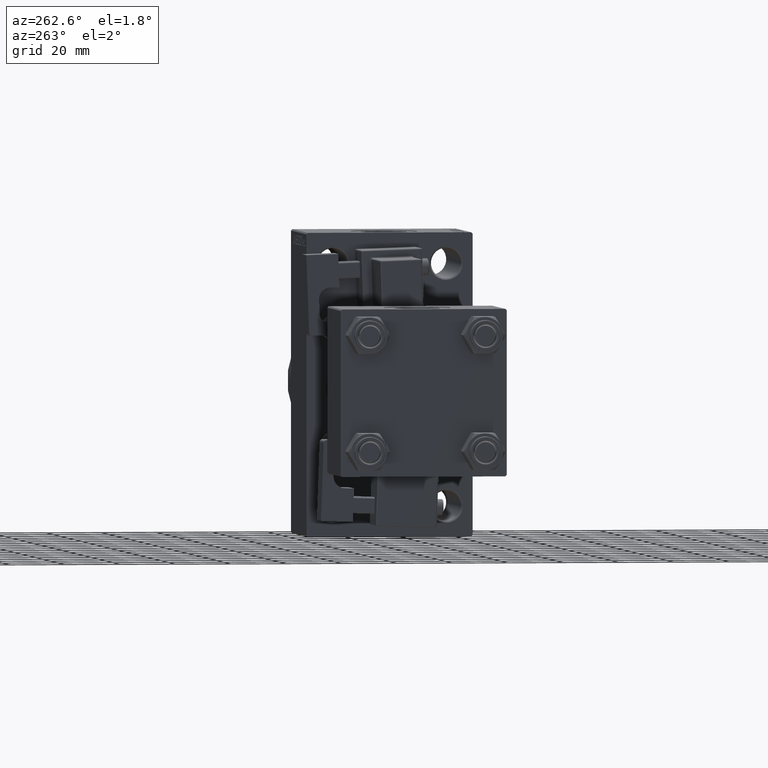
[diagram: clean part render]
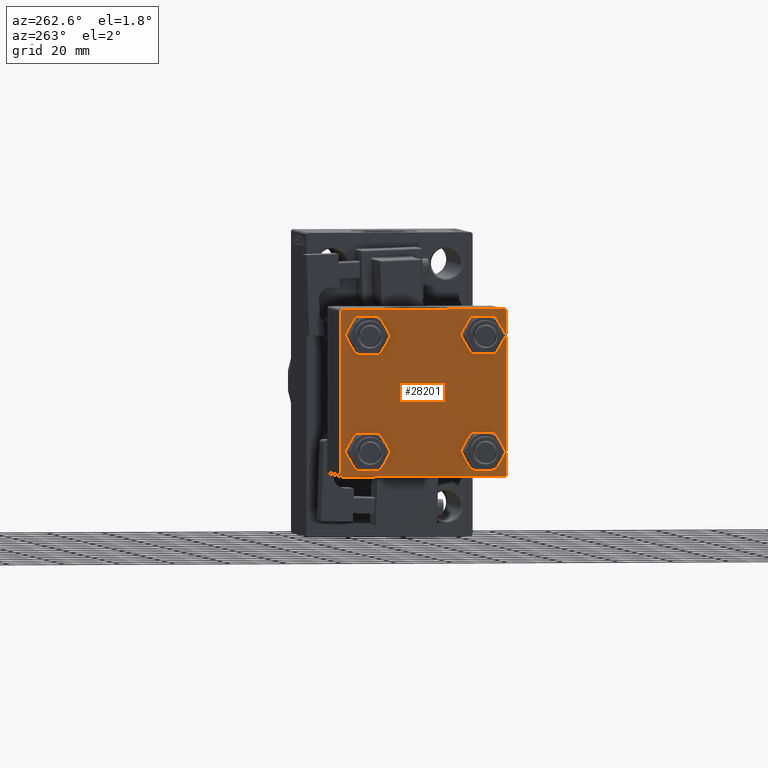
[diagram: same view with one face highlighted and labeled with its STEP entity id]
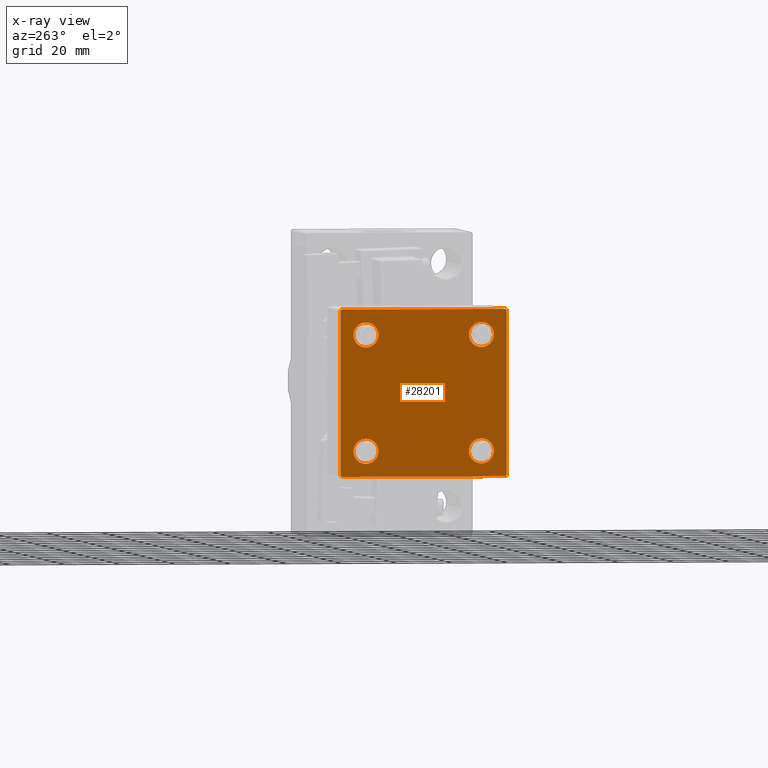
[diagram: x-ray of the same camera — body ghosted, the highlighted face saturated]
A machine part, auxiliary view. The second image highlights one B-rep face of the part: STEP entity #28201.
The next image is the same camera in x-ray: the body ghosted, the highlighted face saturated — about 0% of this face is hidden behind the body in this view.
In plain terms, the highlighted planar face has unit normal (-1, 0, 0).
Its self-contained STEP definition (entity closure, byte-faithful):
#16 = DIRECTION ( 'NONE',  ( 0.000000000000000000, 0.7071067811865474617, -0.7071067811865474617 ) ) ;
#699 = DIRECTION ( 'NONE',  ( 1.000000000000000000, -0.000000000000000000, 0.000000000000000000 ) ) ;
#1947 = CARTESIAN_POINT ( 'NONE',  ( 0.000000000000000000, 20.84999999999999787, 20.85000000000000142 ) ) ;
#2103 = FACE_OUTER_BOUND ( 'NONE', #48180, .T. ) ;
#2269 = CARTESIAN_POINT ( 'NONE',  ( 0.000000000000000000, 29.49999999999999289, 30.00000000000000000 ) ) ;
#2723 = VECTOR ( 'NONE', #40565, 1000.000000000000000 ) ;
#3001 = CARTESIAN_POINT ( 'NONE',  ( 0.000000000000000000, -30.00000000000000000, 29.99999999999999289 ) ) ;
#3501 = VECTOR ( 'NONE', #16, 1000.000000000000114 ) ;
#3523 = CARTESIAN_POINT ( 'NONE',  ( 0.000000000000000000, -20.84999999999999076, -16.34999999999998721 ) ) ;
#4226 = EDGE_CURVE ( 'NONE', #11267, #45255, #38111, .T. ) ;
#4237 = EDGE_CURVE ( 'NONE', #49995, #45192, #5995, .T. ) ;
#5212 = FACE_BOUND ( 'NONE', #37324, .T. ) ;
#5301 = CARTESIAN_POINT ( 'NONE',  ( 0.000000000000000000, -20.84999999999999076, -20.85000000000000497 ) ) ;
#5995 = LINE ( 'NONE', #22357, #41450 ) ;
#6014 = VECTOR ( 'NONE', #27794, 1000.000000000000114 ) ;
#6240 = DIRECTION ( 'NONE',  ( 0.000000000000000000, -1.000000000000000000, -1.156482317317871725E-16 ) ) ;
#6699 = VERTEX_POINT ( 'NONE', #31737 ) ;
#6866 = AXIS2_PLACEMENT_3D ( 'NONE', #45515, #41091, #29395 ) ;
#6940 = EDGE_LOOP ( 'NONE', ( #37485, #20371 ) ) ;
#7532 = AXIS2_PLACEMENT_3D ( 'NONE', #24410, #28575, #43911 ) ;
#8187 = EDGE_CURVE ( 'NONE', #9750, #26150, #47584, .T. ) ;
#8257 = DIRECTION ( 'NONE',  ( 0.000000000000000000, 0.000000000000000000, 1.000000000000000000 ) ) ;
#9750 = VERTEX_POINT ( 'NONE', #17578 ) ;
#9902 = DIRECTION ( 'NONE',  ( -0.000000000000000000, -0.7071067811865574537, -0.7071067811865376918 ) ) ;
#9948 = VERTEX_POINT ( 'NONE', #31328 ) ;
#10035 = CIRCLE ( 'NONE', #7532, 4.500000000000017764 ) ;
#10319 = DIRECTION ( 'NONE',  ( 0.000000000000000000, 0.000000000000000000, 1.000000000000000000 ) ) ;
#10354 = EDGE_CURVE ( 'NONE', #38245, #49995, #42345, .T. ) ;
#10913 = AXIS2_PLACEMENT_3D ( 'NONE', #5301, #12593, #48224 ) ;
#10986 = CIRCLE ( 'NONE', #32533, 4.500000000000017764 ) ;
#11267 = VERTEX_POINT ( 'NONE', #39588 ) ;
#11942 = CARTESIAN_POINT ( 'NONE',  ( -0.000000000000000000, -29.74999999999999645, 29.74999999999999645 ) ) ;
#12003 = VERTEX_POINT ( 'NONE', #20665 ) ;
#12593 = DIRECTION ( 'NONE',  ( 1.000000000000000000, -0.000000000000000000, 0.000000000000000000 ) ) ;
#13021 = CARTESIAN_POINT ( 'NONE',  ( 0.000000000000000000, -29.49999999999998579, 29.99999999999999289 ) ) ;
#13044 = EDGE_CURVE ( 'NONE', #45255, #11267, #38323, .T. ) ;
#13184 = EDGE_CURVE ( 'NONE', #17446, #9948, #26036, .T. ) ;
#13299 = ORIENTED_EDGE ( 'NONE', *, *, #10354, .T. ) ;
#13663 = CIRCLE ( 'NONE', #36066, 4.500000000000017764 ) ;
#13793 = PLANE ( 'NONE',  #6866 ) ;
#13936 = LINE ( 'NONE', #3001, #32486 ) ;
#14414 = CARTESIAN_POINT ( 'NONE',  ( 0.000000000000000000, 29.99999999999999289, -29.50000000000000000 ) ) ;
#15035 = CARTESIAN_POINT ( 'NONE',  ( 0.000000000000000000, 29.99999999999999289, 30.00000000000000000 ) ) ;
#15357 = LINE ( 'NONE', #47084, #3501 ) ;
#17413 = DIRECTION ( 'NONE',  ( 1.000000000000000000, -0.000000000000000000, 0.000000000000000000 ) ) ;
#17446 = VERTEX_POINT ( 'NONE', #29189 ) ;
#17578 = CARTESIAN_POINT ( 'NONE',  ( 0.000000000000000000, -29.50000000000000000, -30.00000000000000711 ) ) ;
#17795 = DIRECTION ( 'NONE',  ( 1.000000000000000000, -0.000000000000000000, 0.000000000000000000 ) ) ;
#17839 = DIRECTION ( 'NONE',  ( 1.000000000000000000, -0.000000000000000000, 0.000000000000000000 ) ) ;
#17881 = DIRECTION ( 'NONE',  ( 0.000000000000000000, 0.000000000000000000, 1.000000000000000000 ) ) ;
#19491 = EDGE_CURVE ( 'NONE', #45192, #9750, #44974, .T. ) ;
#19540 = ORIENTED_EDGE ( 'NONE', *, *, #19491, .T. ) ;
#19931 = ORIENTED_EDGE ( 'NONE', *, *, #50083, .T. ) ;
#20371 = ORIENTED_EDGE ( 'NONE', *, *, #26542, .T. ) ;
#20649 = AXIS2_PLACEMENT_3D ( 'NONE', #33808, #17413, #21578 ) ;
#20665 = CARTESIAN_POINT ( 'NONE',  ( 0.000000000000000000, -20.84999999999999076, 16.34999999999998721 ) ) ;
#21578 = DIRECTION ( 'NONE',  ( 0.000000000000000000, 0.000000000000000000, 1.000000000000000000 ) ) ;
#21785 = CARTESIAN_POINT ( 'NONE',  ( 0.000000000000000000, 20.84999999999999787, -20.85000000000000142 ) ) ;
#21939 = ORIENTED_EDGE ( 'NONE', *, *, #4226, .T. ) ;
#22357 = CARTESIAN_POINT ( 'NONE',  ( 0.000000000000000000, 29.74999999999957723, -29.75000000000040501 ) ) ;
#23452 = VERTEX_POINT ( 'NONE', #2269 ) ;
#23651 = CARTESIAN_POINT ( 'NONE',  ( 0.000000000000000000, -29.75000000000001066, -29.75000000000001066 ) ) ;
#23840 = CARTESIAN_POINT ( 'NONE',  ( 0.000000000000000000, -20.84999999999999076, 20.85000000000000497 ) ) ;
#23904 = DIRECTION ( 'NONE',  ( 0.000000000000000000, -0.7071067811865474617, 0.7071067811865474617 ) ) ;
#24410 = CARTESIAN_POINT ( 'NONE',  ( 0.000000000000000000, -20.84999999999999076, 20.85000000000000497 ) ) ;
#24668 = VERTEX_POINT ( 'NONE', #13021 ) ;
#24964 = EDGE_CURVE ( 'NONE', #12003, #6699, #10035, .T. ) ;
#24966 = FACE_BOUND ( 'NONE', #6940, .T. ) ;
#26036 = CIRCLE ( 'NONE', #47593, 4.500000000000017764 ) ;
#26150 = VERTEX_POINT ( 'NONE', #51402 ) ;
#26542 = EDGE_CURVE ( 'NONE', #46480, #27396, #33312, .T. ) ;
#26661 = CARTESIAN_POINT ( 'NONE',  ( 0.000000000000000000, -20.84999999999999076, -20.85000000000000497 ) ) ;
#27201 = EDGE_CURVE ( 'NONE', #27396, #46480, #10986, .T. ) ;
#27396 = VERTEX_POINT ( 'NONE', #3523 ) ;
#27794 = DIRECTION ( 'NONE',  ( -0.000000000000000000, 0.7071067811865474617, 0.7071067811865474617 ) ) ;
#28201 = ADVANCED_FACE ( 'NONE', ( #37716, #24966, #5212, #33555, #2103 ), #13793, .T. ) ;
#28355 = CARTESIAN_POINT ( 'NONE',  ( 0.000000000000000000, 29.99999999999999289, 30.00000000000000000 ) ) ;
#28492 = AXIS2_PLACEMENT_3D ( 'NONE', #23840, #699, #8257 ) ;
#28575 = DIRECTION ( 'NONE',  ( 1.000000000000000000, -0.000000000000000000, 0.000000000000000000 ) ) ;
#29031 = EDGE_LOOP ( 'NONE', ( #37522, #46127 ) ) ;
#29189 = CARTESIAN_POINT ( 'NONE',  ( 0.000000000000000000, 20.84999999999999787, 16.34999999999998366 ) ) ;
#29395 = DIRECTION ( 'NONE',  ( -0.000000000000000000, 0.000000000000000000, 1.000000000000000000 ) ) ;
#29753 = DIRECTION ( 'NONE',  ( 0.000000000000000000, 0.000000000000000000, 1.000000000000000000 ) ) ;
#29766 = EDGE_CURVE ( 'NONE', #42506, #26150, #13936, .T. ) ;
#30864 = AXIS2_PLACEMENT_3D ( 'NONE', #21785, #37651, #17881 ) ;
#30958 = EDGE_CURVE ( 'NONE', #42506, #24668, #31691, .T. ) ;
#31122 = ORIENTED_EDGE ( 'NONE', *, *, #8187, .T. ) ;
#31328 = CARTESIAN_POINT ( 'NONE',  ( 0.000000000000000000, 20.84999999999999787, 25.35000000000001918 ) ) ;
#31691 = LINE ( 'NONE', #11942, #6014 ) ;
#31737 = CARTESIAN_POINT ( 'NONE',  ( 0.000000000000000000, -20.84999999999999076, 25.35000000000002274 ) ) ;
#32202 = VECTOR ( 'NONE', #6240, 1000.000000000000000 ) ;
#32486 = VECTOR ( 'NONE', #45655, 1000.000000000000000 ) ;
#32533 = AXIS2_PLACEMENT_3D ( 'NONE', #26661, #17839, #10319 ) ;
#33007 = CARTESIAN_POINT ( 'NONE',  ( 0.000000000000000000, 29.99999999999999289, -30.00000000000000000 ) ) ;
#33037 = EDGE_CURVE ( 'NONE', #6699, #12003, #43445, .T. ) ;
#33100 = ORIENTED_EDGE ( 'NONE', *, *, #13044, .T. ) ;
#33228 = EDGE_LOOP ( 'NONE', ( #19931, #45062 ) ) ;
#33312 = CIRCLE ( 'NONE', #10913, 4.500000000000017764 ) ;
#33555 = FACE_BOUND ( 'NONE', #33228, .T. ) ;
#33808 = CARTESIAN_POINT ( 'NONE',  ( 0.000000000000000000, 20.84999999999999787, -20.85000000000000142 ) ) ;
#34703 = ORIENTED_EDGE ( 'NONE', *, *, #30958, .T. ) ;
#35305 = DIRECTION ( 'NONE',  ( 0.000000000000000000, 0.000000000000000000, -1.000000000000000000 ) ) ;
#36066 = AXIS2_PLACEMENT_3D ( 'NONE', #1947, #17795, #29753 ) ;
#36452 = VECTOR ( 'NONE', #23904, 1000.000000000000114 ) ;
#37324 = EDGE_LOOP ( 'NONE', ( #33100, #21939 ) ) ;
#37485 = ORIENTED_EDGE ( 'NONE', *, *, #27201, .T. ) ;
#37522 = ORIENTED_EDGE ( 'NONE', *, *, #33037, .T. ) ;
#37651 = DIRECTION ( 'NONE',  ( 1.000000000000000000, -0.000000000000000000, 0.000000000000000000 ) ) ;
#37716 = FACE_BOUND ( 'NONE', #29031, .T. ) ;
#38111 = CIRCLE ( 'NONE', #20649, 4.500000000000017764 ) ;
#38245 = VERTEX_POINT ( 'NONE', #43859 ) ;
#38246 = VECTOR ( 'NONE', #35305, 1000.000000000000000 ) ;
#38323 = CIRCLE ( 'NONE', #30864, 4.500000000000017764 ) ;
#38917 = CARTESIAN_POINT ( 'NONE',  ( 0.000000000000000000, 20.84999999999999787, 20.85000000000000142 ) ) ;
#39052 = ORIENTED_EDGE ( 'NONE', *, *, #4237, .T. ) ;
#39588 = CARTESIAN_POINT ( 'NONE',  ( 0.000000000000000000, 20.84999999999999787, -25.35000000000001918 ) ) ;
#39642 = CARTESIAN_POINT ( 'NONE',  ( 0.000000000000000000, 20.84999999999999787, -16.34999999999998366 ) ) ;
#40565 = DIRECTION ( 'NONE',  ( 0.000000000000000000, -1.000000000000000000, -1.156482317317871725E-16 ) ) ;
#41091 = DIRECTION ( 'NONE',  ( -1.000000000000000000, 0.000000000000000000, -0.000000000000000000 ) ) ;
#41450 = VECTOR ( 'NONE', #9902, 999.9999999999998863 ) ;
#42345 = LINE ( 'NONE', #15035, #38246 ) ;
#42506 = VERTEX_POINT ( 'NONE', #44024 ) ;
#43445 = CIRCLE ( 'NONE', #28492, 4.500000000000017764 ) ;
#43859 = CARTESIAN_POINT ( 'NONE',  ( 0.000000000000000000, 29.99999999999999289, 29.50000000000000000 ) ) ;
#43911 = DIRECTION ( 'NONE',  ( 0.000000000000000000, 0.000000000000000000, 1.000000000000000000 ) ) ;
#44024 = CARTESIAN_POINT ( 'NONE',  ( 0.000000000000000000, -30.00000000000000000, 29.49999999999999289 ) ) ;
#44473 = LINE ( 'NONE', #28355, #2723 ) ;
#44974 = LINE ( 'NONE', #33007, #32202 ) ;
#45062 = ORIENTED_EDGE ( 'NONE', *, *, #13184, .T. ) ;
#45192 = VERTEX_POINT ( 'NONE', #50095 ) ;
#45255 = VERTEX_POINT ( 'NONE', #39642 ) ;
#45515 = CARTESIAN_POINT ( 'NONE',  ( 0.000000000000000000, 0.000000000000000000, 0.000000000000000000 ) ) ;
#45655 = DIRECTION ( 'NONE',  ( 0.000000000000000000, 0.000000000000000000, -1.000000000000000000 ) ) ;
#45879 = EDGE_CURVE ( 'NONE', #23452, #38245, #15357, .T. ) ;
#46127 = ORIENTED_EDGE ( 'NONE', *, *, #24964, .T. ) ;
#46480 = VERTEX_POINT ( 'NONE', #47672 ) ;
#46909 = EDGE_CURVE ( 'NONE', #23452, #24668, #44473, .T. ) ;
#47084 = CARTESIAN_POINT ( 'NONE',  ( 0.000000000000000000, 29.74999999999999645, 29.74999999999999645 ) ) ;
#47584 = LINE ( 'NONE', #23651, #36452 ) ;
#47593 = AXIS2_PLACEMENT_3D ( 'NONE', #38917, #47689, #50626 ) ;
#47672 = CARTESIAN_POINT ( 'NONE',  ( 0.000000000000000000, -20.84999999999999076, -25.35000000000002274 ) ) ;
#47689 = DIRECTION ( 'NONE',  ( 1.000000000000000000, -0.000000000000000000, 0.000000000000000000 ) ) ;
#48180 = EDGE_LOOP ( 'NONE', ( #13299, #39052, #19540, #31122, #49458, #34703, #50635, #50628 ) ) ;
#48224 = DIRECTION ( 'NONE',  ( 0.000000000000000000, 0.000000000000000000, 1.000000000000000000 ) ) ;
#49458 = ORIENTED_EDGE ( 'NONE', *, *, #29766, .F. ) ;
#49995 = VERTEX_POINT ( 'NONE', #14414 ) ;
#50083 = EDGE_CURVE ( 'NONE', #9948, #17446, #13663, .T. ) ;
#50095 = CARTESIAN_POINT ( 'NONE',  ( 0.000000000000000000, 29.49999999999997868, -30.00000000000000000 ) ) ;
#50626 = DIRECTION ( 'NONE',  ( 0.000000000000000000, 0.000000000000000000, 1.000000000000000000 ) ) ;
#50628 = ORIENTED_EDGE ( 'NONE', *, *, #45879, .T. ) ;
#50635 = ORIENTED_EDGE ( 'NONE', *, *, #46909, .F. ) ;
#51402 = CARTESIAN_POINT ( 'NONE',  ( 0.000000000000000000, -30.00000000000000000, -29.50000000000001776 ) ) ;